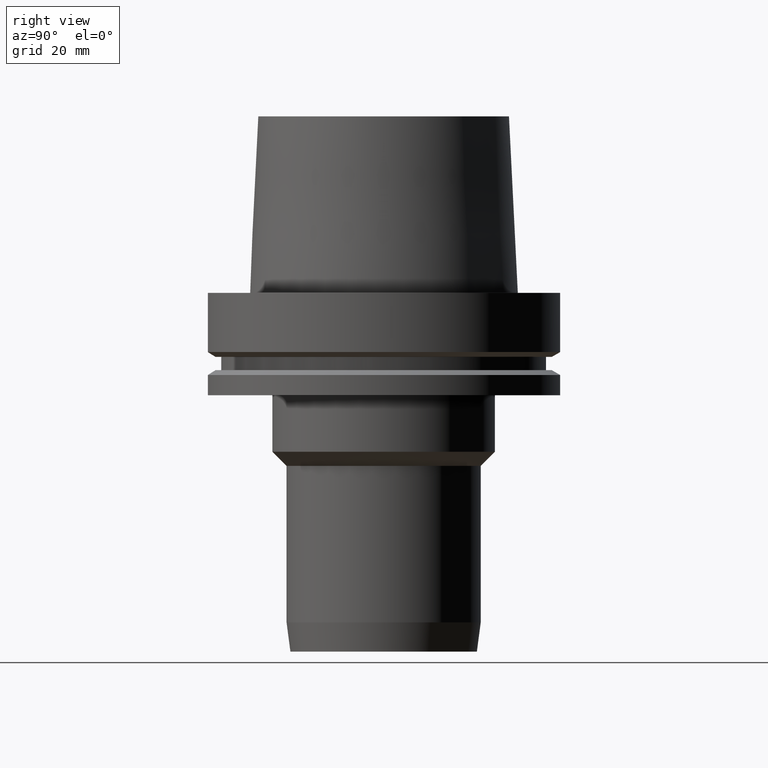
[diagram: clean part render]
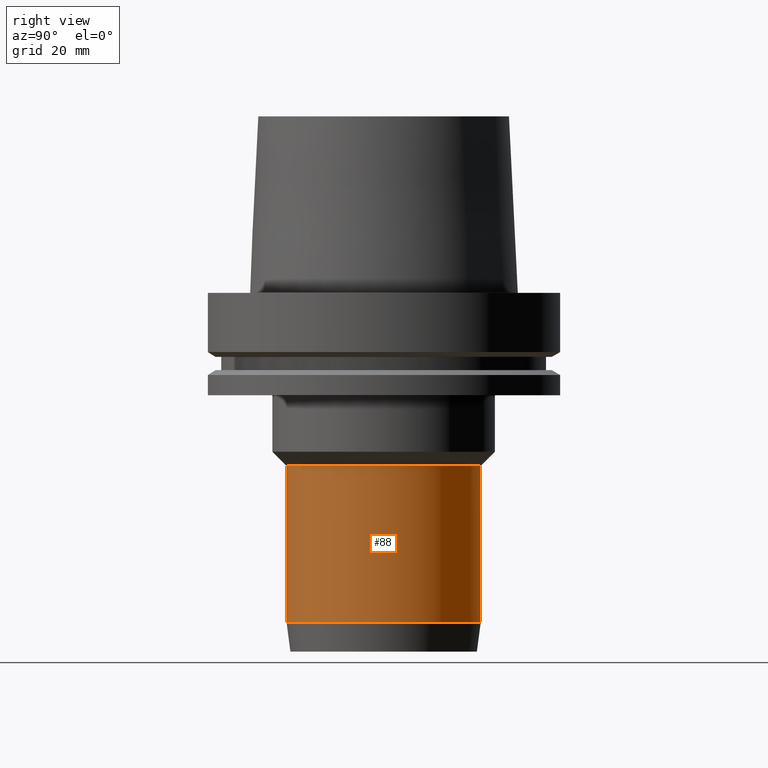
[diagram: same view with one face highlighted and labeled with its STEP entity id]
A machine part, right view. The second image highlights one B-rep face of the part: STEP entity #88.
In plain terms, the highlighted cylindrical surface (bore or boss wall) has radius 27.5 mm, axis along (0, 0, -1).
Its self-contained STEP definition (entity closure, byte-faithful):
#83=EDGE_CURVE('Unnamed[1]',#195,#195,#196,.T.);
#88=ADVANCED_FACE('Unnamed[1]',(#202,#203),#204,.T.);
#102=EDGE_CURVE('Unnamed[1]',#225,#225,#226,.T.);
#195=VERTEX_POINT('',#338);
#196=CIRCLE('',#339,27.5000000000022);
#202=FACE_BOUND('',#347,.T.);
#203=FACE_BOUND('',#348,.T.);
#204=CYLINDRICAL_SURFACE('',#349,27.5000000000019);
#225=VERTEX_POINT('',#376);
#226=CIRCLE('',#377,27.5000000000016);
#338=CARTESIAN_POINT('',(5.7135748978548E-015,27.5000000000022,-93.3097592192755));
#339=AXIS2_PLACEMENT_3D('',#491,#492,#493);
#347=EDGE_LOOP('',(#498));
#348=EDGE_LOOP('',(#499));
#349=AXIS2_PLACEMENT_3D('',#500,#501,#502);
#376=CARTESIAN_POINT('',(3.00038465791101E-015,27.5000000000017,-49.0));
#377=AXIS2_PLACEMENT_3D('',#524,#525,#526);
#491=CARTESIAN_POINT('',(5.7135748978548E-015,1.14271497957096E-014,-93.3097592192755));
#492=DIRECTION('',(6.12323399573677E-017,1.22464679914732E-016,-1.0));
#493=DIRECTION('',(-1.23259516440773E-032,1.0,1.22464679914732E-016));
#498=ORIENTED_EDGE('',*,*,#83,.F.);
#499=ORIENTED_EDGE('',*,*,#102,.T.);
#500=CARTESIAN_POINT('',(4.35697977788291E-015,8.71395955576581E-015,-71.1548796096378));
#501=DIRECTION('',(6.12323399573677E-017,1.22464679914733E-016,-1.0));
#502=DIRECTION('',(-1.23259516440774E-032,1.0,1.22464679914733E-016));
#524=CARTESIAN_POINT('',(3.00038465791101E-015,6.00076931582203E-015,-49.0));
#525=DIRECTION('',(6.12323399573677E-017,1.22464679914735E-016,-1.0));
#526=DIRECTION('',(-1.23259516440776E-032,1.0,1.22464679914735E-016));